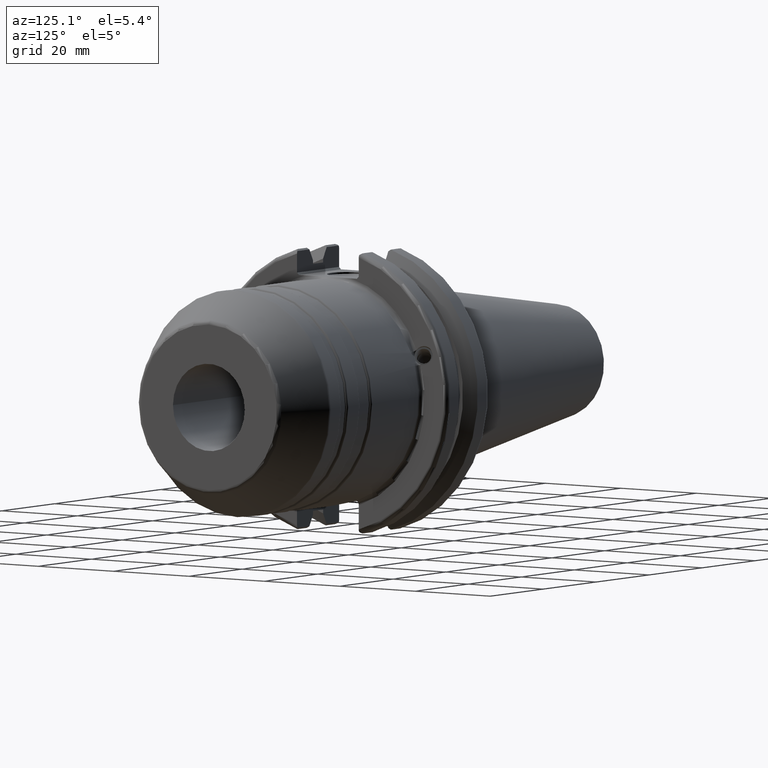
[diagram: clean part render]
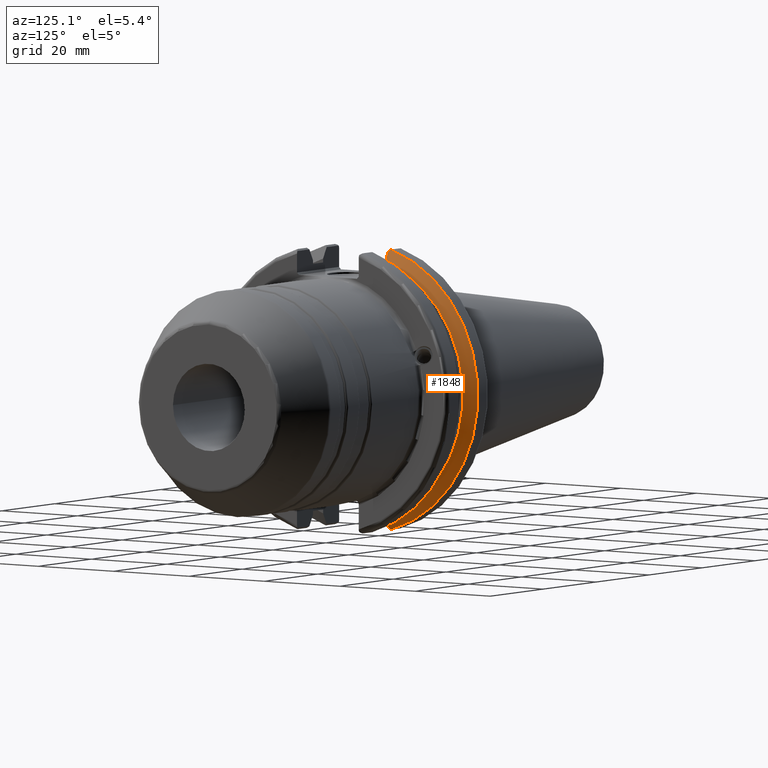
[diagram: same view with one face highlighted and labeled with its STEP entity id]
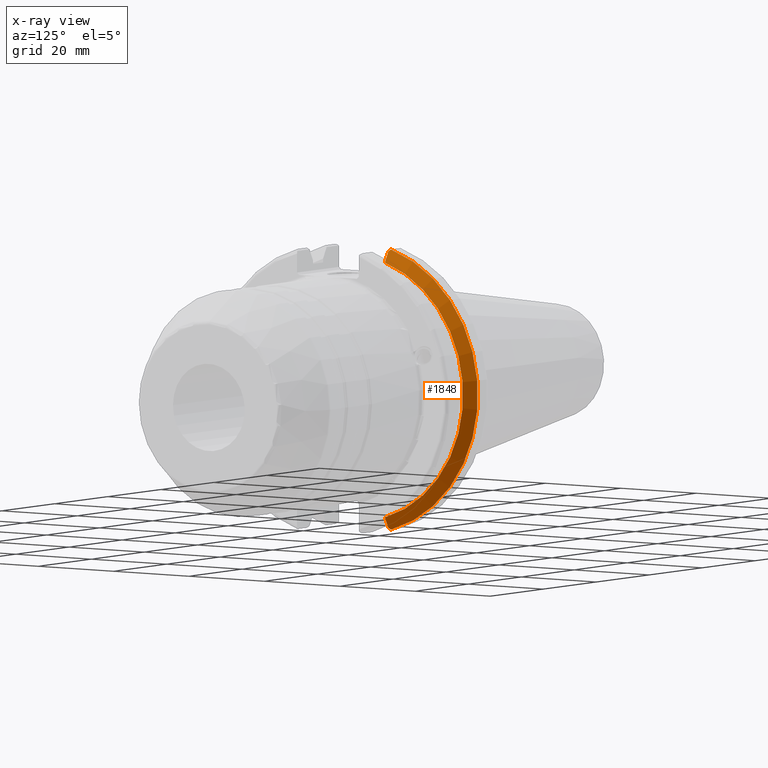
[diagram: x-ray of the same camera — body ghosted, the highlighted face saturated]
A machine part, auxiliary view. The second image highlights one B-rep face of the part: STEP entity #1848.
The next image is the same camera in x-ray: the body ghosted, the highlighted face saturated — about 0% of this face is hidden behind the body in this view.
In plain terms, the highlighted conical surface has half-angle 60 deg.
Its self-contained STEP definition (entity closure, byte-faithful):
#16=(
BOUNDED_CURVE()
B_SPLINE_CURVE(2,(#3522,#3523,#3524),.UNSPECIFIED.,.F.,.F.)
B_SPLINE_CURVE_WITH_KNOTS((3,3),(0.,0.276549142797088),.UNSPECIFIED.)
CURVE()
GEOMETRIC_REPRESENTATION_ITEM()
RATIONAL_B_SPLINE_CURVE((1.,1.00095203903867,1.00031614444995))
REPRESENTATION_ITEM('')
);
#24=(
BOUNDED_CURVE()
B_SPLINE_CURVE(2,(#3684,#3685,#3686),.UNSPECIFIED.,.F.,.F.)
B_SPLINE_CURVE_WITH_KNOTS((3,3),(0.,0.0639048713676096),.UNSPECIFIED.)
CURVE()
GEOMETRIC_REPRESENTATION_ITEM()
RATIONAL_B_SPLINE_CURVE((1.,1.00028444218277,1.00047644010564))
REPRESENTATION_ITEM('')
);
#26=(
BOUNDED_CURVE()
B_SPLINE_CURVE(2,(#3722,#3723,#3724),.UNSPECIFIED.,.F.,.F.)
B_SPLINE_CURVE_WITH_KNOTS((3,3),(0.0550586467393311,0.331607789535851),
 .UNSPECIFIED.)
CURVE()
GEOMETRIC_REPRESENTATION_ITEM()
RATIONAL_B_SPLINE_CURVE((1.00031614445049,1.00095203904028,1.))
REPRESENTATION_ITEM('')
);
#30=(
BOUNDED_CURVE()
B_SPLINE_CURVE(2,(#3755,#3756,#3757),.UNSPECIFIED.,.F.,.F.)
B_SPLINE_CURVE_WITH_KNOTS((3,3),(0.329353533631214,0.393258405001024),
 .UNSPECIFIED.)
CURVE()
GEOMETRIC_REPRESENTATION_ITEM()
RATIONAL_B_SPLINE_CURVE((1.00047644010576,1.00028444218285,1.))
REPRESENTATION_ITEM('')
);
#155=CONICAL_SURFACE('',#2108,30.3546886482472,1.0471975511966);
#457=FACE_OUTER_BOUND('',#574,.T.);
#574=EDGE_LOOP('',(#1676,#1677,#1678,#1679,#1680,#1681));
#694=CIRCLE('',#2096,31.75);
#699=CIRCLE('',#2109,28.9593772964944);
#842=VERTEX_POINT('',#3519);
#843=VERTEX_POINT('',#3521);
#872=VERTEX_POINT('',#3682);
#882=VERTEX_POINT('',#3719);
#883=VERTEX_POINT('',#3721);
#886=VERTEX_POINT('',#3737);
#1088=EDGE_CURVE('',#843,#842,#16,.T.);
#1129=EDGE_CURVE('',#872,#842,#24,.T.);
#1145=EDGE_CURVE('',#883,#882,#26,.T.);
#1152=EDGE_CURVE('',#872,#886,#694,.T.);
#1158=EDGE_CURVE('',#883,#886,#30,.T.);
#1163=EDGE_CURVE('',#843,#882,#699,.T.);
#1676=ORIENTED_EDGE('',*,*,#1129,.F.);
#1677=ORIENTED_EDGE('',*,*,#1152,.T.);
#1678=ORIENTED_EDGE('',*,*,#1158,.F.);
#1679=ORIENTED_EDGE('',*,*,#1145,.T.);
#1680=ORIENTED_EDGE('',*,*,#1163,.F.);
#1681=ORIENTED_EDGE('',*,*,#1088,.T.);
#1848=ADVANCED_FACE('',(#457),#155,.T.);
#2096=AXIS2_PLACEMENT_3D('',#3739,#2637,#2638);
#2108=AXIS2_PLACEMENT_3D('',#3767,#2664,#2665);
#2109=AXIS2_PLACEMENT_3D('',#3768,#2666,#2667);
#2637=DIRECTION('center_axis',(1.,0.,0.));
#2638=DIRECTION('ref_axis',(0.,0.,-1.));
#2664=DIRECTION('center_axis',(-1.,0.,0.));
#2665=DIRECTION('ref_axis',(0.,1.,0.));
#2666=DIRECTION('center_axis',(1.,0.,0.));
#2667=DIRECTION('ref_axis',(0.,0.,-1.));
#3519=CARTESIAN_POINT('',(7.88668530351255,8.19,-30.1755016258903));
#3521=CARTESIAN_POINT('',(9.2191,8.19,-27.7771386827498));
#3522=CARTESIAN_POINT('Ctrl Pts',(9.2191,8.19,-27.7771386827498));
#3523=CARTESIAN_POINT('Ctrl Pts',(8.58046356153227,8.19,-28.9303689539555));
#3524=CARTESIAN_POINT('Ctrl Pts',(7.88668530351255,8.19,-30.1755016258903));
#3682=CARTESIAN_POINT('',(7.60793323092436,8.67204822802685,-30.5427254764662));
#3684=CARTESIAN_POINT('Ctrl Pts',(7.60793323092436,8.67204822802685,-30.5427254764662));
#3685=CARTESIAN_POINT('Ctrl Pts',(7.74899148121625,8.42917748262648,-30.357706789263));
#3686=CARTESIAN_POINT('Ctrl Pts',(7.88668530351255,8.19,-30.1755016258903));
#3719=CARTESIAN_POINT('',(9.2191,8.19,27.7771386827498));
#3721=CARTESIAN_POINT('',(7.88668530351256,8.19,30.1755016258903));
#3722=CARTESIAN_POINT('Ctrl Pts',(7.88668530351256,8.19,30.1755016258903));
#3723=CARTESIAN_POINT('Ctrl Pts',(8.5804635615239,8.19,28.9303689539705));
#3724=CARTESIAN_POINT('Ctrl Pts',(9.2191,8.19,27.7771386827498));
#3737=CARTESIAN_POINT('',(7.60793323092436,8.67204822802685,30.5427254764662));
#3739=CARTESIAN_POINT('Origin',(7.60793323092436,0.,0.));
#3755=CARTESIAN_POINT('Ctrl Pts',(7.88668530351256,8.19,30.1755016258903));
#3756=CARTESIAN_POINT('Ctrl Pts',(7.7489914812116,8.42917748263465,30.3577067892692));
#3757=CARTESIAN_POINT('Ctrl Pts',(7.60793323092436,8.67204822802685,30.5427254764662));
#3767=CARTESIAN_POINT('Origin',(8.41351661546217,0.,0.));
#3768=CARTESIAN_POINT('Origin',(9.2191,0.,0.));